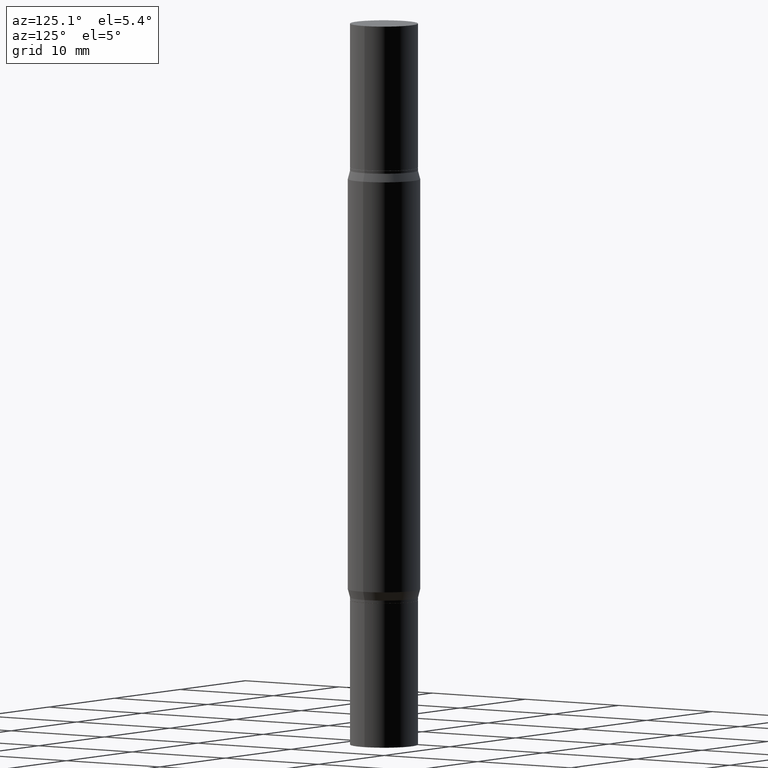
[diagram: clean part render]
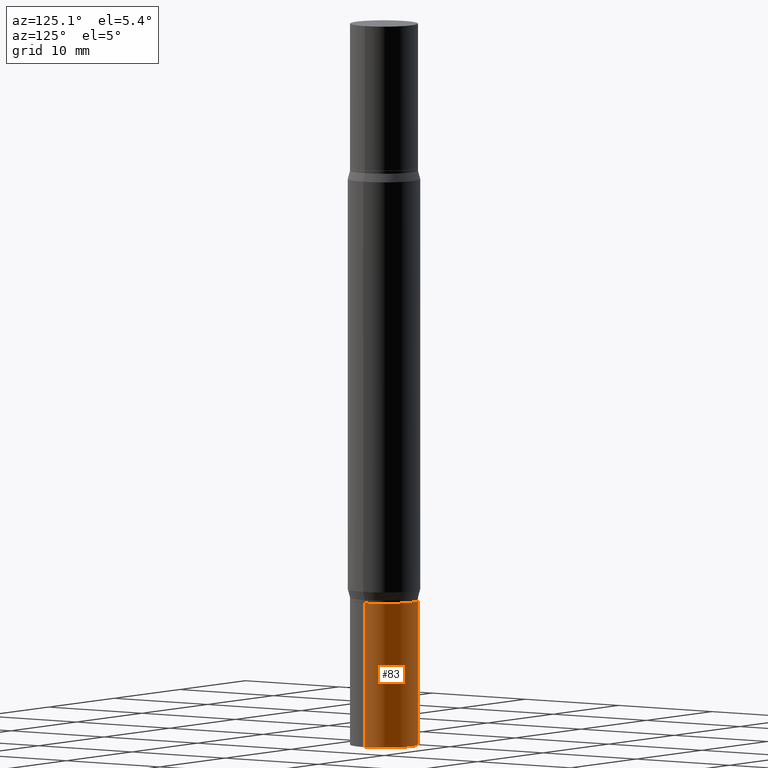
[diagram: same view with one face highlighted and labeled with its STEP entity id]
A machine part, auxiliary view. The second image highlights one B-rep face of the part: STEP entity #83.
In plain terms, the highlighted cylindrical surface (edge-blend (fillet) strip) has radius 2.9769 mm, axis along (-0, 0, 1).
Its self-contained STEP definition (entity closure, byte-faithful):
#11 = CARTESIAN_POINT ( 'NONE',  ( 0.1171999999999999986, -7.801365903511122804E-15, -2.000000000000000444 ) ) ;
#38 = DIRECTION ( 'NONE',  ( 1.000000000000000000, -6.982962677686261977E-15, 0.000000000000000000 ) ) ;
#50 = VERTEX_POINT ( 'NONE', #747 ) ;
#63 = DIRECTION ( 'NONE',  ( 1.000000000000000000, -6.982962677686269866E-15, 0.000000000000000000 ) ) ;
#83 = ADVANCED_FACE ( 'NONE', ( #971 ), #208, .T. ) ;
#94 = CARTESIAN_POINT ( 'NONE',  ( 0.1171999999999999986, -8.184032258248304553E-16, 5.714879181232836475E-30 ) ) ;
#116 = DIRECTION ( 'NONE',  ( -2.445468806185136597E-29, 3.491481338843145583E-15, 1.000000000000000000 ) ) ;
#167 = VERTEX_POINT ( 'NONE', #11 ) ;
#182 = LINE ( 'NONE', #94, #882 ) ;
#208 = CYLINDRICAL_SURFACE ( 'NONE', #366, 0.1171999999999999986 ) ;
#219 = ORIENTED_EDGE ( 'NONE', *, *, #676, .F. ) ;
#248 = DIRECTION ( 'NONE',  ( -2.445468806185136877E-29, 3.491481338843145188E-15, 1.000000000000000000 ) ) ;
#269 = CARTESIAN_POINT ( 'NONE',  ( -0.1171999999999999986, 8.327560863108374081E-16, -5.764991925778749121E-30 ) ) ;
#301 = CARTESIAN_POINT ( 'NONE',  ( 0.000000000000000000, 0.000000000000000000, 0.000000000000000000 ) ) ;
#329 = EDGE_LOOP ( 'NONE', ( #373, #390, #498, #219 ) ) ;
#333 = AXIS2_PLACEMENT_3D ( 'NONE', #436, #734, #63 ) ;
#366 = AXIS2_PLACEMENT_3D ( 'NONE', #301, #433, #520 ) ;
#367 = EDGE_CURVE ( 'NONE', #50, #422, #916, .T. ) ;
#373 = ORIENTED_EDGE ( 'NONE', *, *, #367, .T. ) ;
#390 = ORIENTED_EDGE ( 'NONE', *, *, #434, .T. ) ;
#422 = VERTEX_POINT ( 'NONE', #641 ) ;
#427 = VECTOR ( 'NONE', #569, 39.37007874015748143 ) ;
#433 = DIRECTION ( 'NONE',  ( -2.445468806185136597E-29, 3.491481338843145583E-15, 1.000000000000000000 ) ) ;
#434 = EDGE_CURVE ( 'NONE', #422, #444, #944, .T. ) ;
#436 = CARTESIAN_POINT ( 'NONE',  ( 4.890937612370273754E-29, -6.982962677686291954E-15, -2.000000000000000444 ) ) ;
#444 = VERTEX_POINT ( 'NONE', #600 ) ;
#487 = AXIS2_PLACEMENT_3D ( 'NONE', #940, #116, #38 ) ;
#498 = ORIENTED_EDGE ( 'NONE', *, *, #874, .F. ) ;
#520 = DIRECTION ( 'NONE',  ( 1.000000000000000000, -6.982962677686266711E-15, 4.876176775795935793E-29 ) ) ;
#569 = DIRECTION ( 'NONE',  ( -2.445468806185136877E-29, 3.491481338843145188E-15, 1.000000000000000000 ) ) ;
#600 = CARTESIAN_POINT ( 'NONE',  ( -0.1171999999999999986, -7.023076926086241238E-15, -2.000000000000000444 ) ) ;
#641 = CARTESIAN_POINT ( 'NONE',  ( -0.1171999999999999986, -7.023076926086241238E-15, -2.500000000000000000 ) ) ;
#676 = EDGE_CURVE ( 'NONE', #50, #167, #182, .T. ) ;
#734 = DIRECTION ( 'NONE',  ( -2.445468806185136597E-29, 3.491481338843145583E-15, 1.000000000000000000 ) ) ;
#747 = CARTESIAN_POINT ( 'NONE',  ( 0.1171999999999999986, -9.547106572932694215E-15, -2.500000000000000000 ) ) ;
#755 = CIRCLE ( 'NONE', #333, 0.1171999999999999986 ) ;
#874 = EDGE_CURVE ( 'NONE', #167, #444, #755, .T. ) ;
#882 = VECTOR ( 'NONE', #248, 39.37007874015748143 ) ;
#916 = CIRCLE ( 'NONE', #487, 0.1171999999999999986 ) ;
#940 = CARTESIAN_POINT ( 'NONE',  ( 6.113672015462842613E-29, -8.728703347107864943E-15, -2.500000000000000000 ) ) ;
#944 = LINE ( 'NONE', #269, #427 ) ;
#971 = FACE_OUTER_BOUND ( 'NONE', #329, .T. ) ;